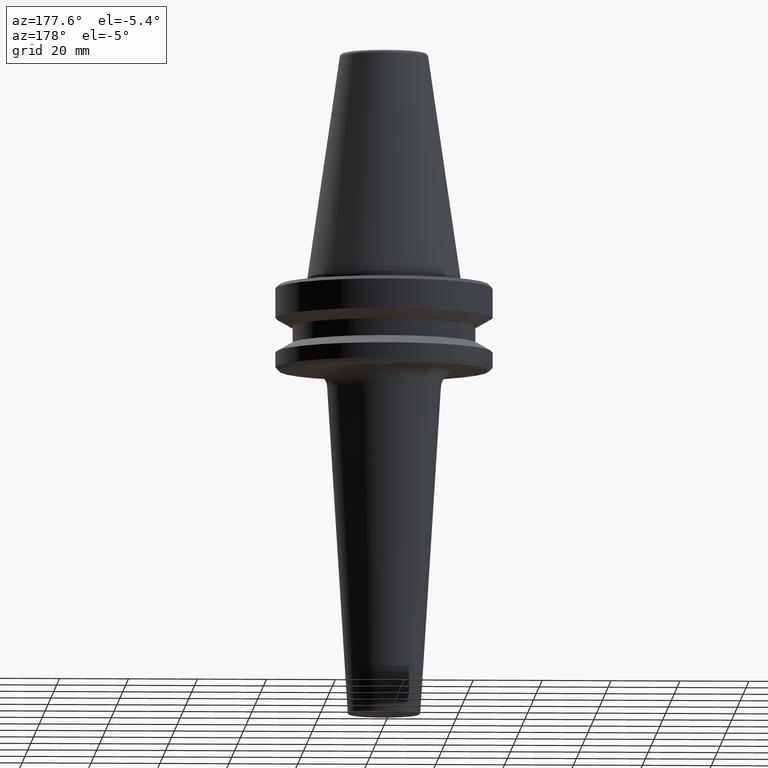
[diagram: clean part render]
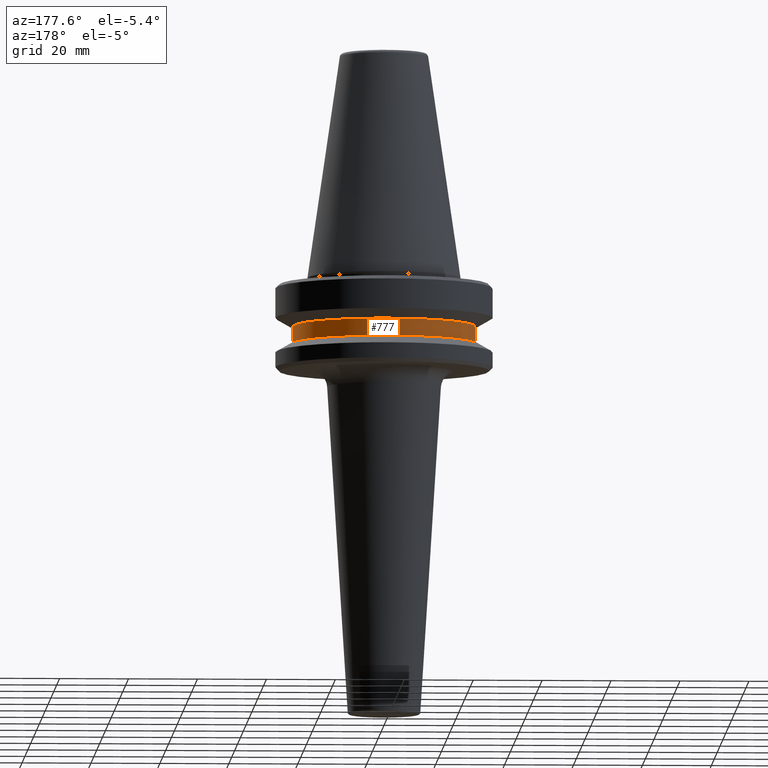
[diagram: same view with one face highlighted and labeled with its STEP entity id]
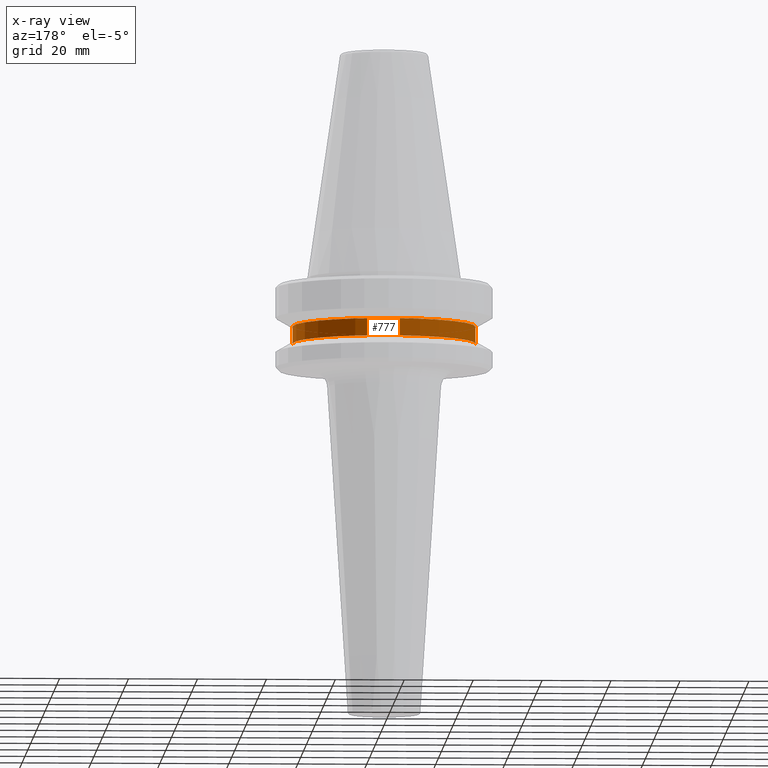
[diagram: x-ray of the same camera — body ghosted, the highlighted face saturated]
A machine part, auxiliary view. The second image highlights one B-rep face of the part: STEP entity #777.
The next image is the same camera in x-ray: the body ghosted, the highlighted face saturated — about 0% of this face is hidden behind the body in this view.
In plain terms, the highlighted cylindrical surface (partial cylindrical patch) has radius 26.5 mm, axis along (-0, -0, 1).
Its self-contained STEP definition (entity closure, byte-faithful):
#27 = EDGE_CURVE ( 'NONE', #128, #749, #46, .T. ) ;
#46 = CIRCLE ( 'NONE', #291, 26.50000000000019200 ) ;
#77 = ORIENTED_EDGE ( 'NONE', *, *, #537, .F. ) ;
#128 = VERTEX_POINT ( 'NONE', #1022 ) ;
#142 = CARTESIAN_POINT ( 'NONE',  ( 0.0000000000000000000, 0.0000000000000000000, -84.50000000000068200 ) ) ;
#148 = DIRECTION ( 'NONE',  ( -0.0000000000000000000, -0.0000000000000000000, 1.000000000000000000 ) ) ;
#172 = DIRECTION ( 'NONE',  ( -0.0000000000000000000, -0.0000000000000000000, 1.000000000000000000 ) ) ;
#222 = AXIS2_PLACEMENT_3D ( 'NONE', #954, #148, #555 ) ;
#252 = CIRCLE ( 'NONE', #222, 26.50000000000019200 ) ;
#272 = DIRECTION ( 'NONE',  ( 1.000000000000000000, 0.0000000000000000000, 0.0000000000000000000 ) ) ;
#286 = VERTEX_POINT ( 'NONE', #483 ) ;
#291 = AXIS2_PLACEMENT_3D ( 'NONE', #142, #172, #272 ) ;
#296 = EDGE_CURVE ( 'NONE', #749, #641, #532, .T. ) ;
#312 = CARTESIAN_POINT ( 'NONE',  ( 26.50000000000019200, 0.0000000000000000000, 6.357346922996331500 ) ) ;
#329 = VECTOR ( 'NONE', #423, 1000.000000000000000 ) ;
#342 = CARTESIAN_POINT ( 'NONE',  ( -26.50000000000019200, 3.245314017740509400E-015, 6.357346922996331500 ) ) ;
#362 = DIRECTION ( 'NONE',  ( -0.0000000000000000000, -0.0000000000000000000, 1.000000000000000000 ) ) ;
#423 = DIRECTION ( 'NONE',  ( -0.0000000000000000000, -0.0000000000000000000, 1.000000000000000000 ) ) ;
#441 = VECTOR ( 'NONE', #895, 1000.000000000000000 ) ;
#483 = CARTESIAN_POINT ( 'NONE',  ( 26.50000000000019200, 0.0000000000000000000, -79.50000000000012800 ) ) ;
#503 = CYLINDRICAL_SURFACE ( 'NONE', #669, 26.50000000000019200 ) ;
#532 = LINE ( 'NONE', #342, #329 ) ;
#537 = EDGE_CURVE ( 'NONE', #128, #286, #637, .T. ) ;
#555 = DIRECTION ( 'NONE',  ( 1.000000000000000000, 0.0000000000000000000, 0.0000000000000000000 ) ) ;
#590 = CARTESIAN_POINT ( 'NONE',  ( 0.0000000000000000000, 0.0000000000000000000, 6.357346922996331500 ) ) ;
#637 = LINE ( 'NONE', #312, #441 ) ;
#641 = VERTEX_POINT ( 'NONE', #901 ) ;
#662 = CARTESIAN_POINT ( 'NONE',  ( -26.50000000000019200, 3.245314017740509400E-015, -84.50000000000068200 ) ) ;
#669 = AXIS2_PLACEMENT_3D ( 'NONE', #590, #362, #742 ) ;
#736 = ORIENTED_EDGE ( 'NONE', *, *, #296, .T. ) ;
#742 = DIRECTION ( 'NONE',  ( 1.000000000000000000, 0.0000000000000000000, 0.0000000000000000000 ) ) ;
#745 = FACE_OUTER_BOUND ( 'NONE', #811, .T. ) ;
#749 = VERTEX_POINT ( 'NONE', #662 ) ;
#754 = ORIENTED_EDGE ( 'NONE', *, *, #27, .T. ) ;
#762 = EDGE_CURVE ( 'NONE', #286, #641, #252, .T. ) ;
#777 = ADVANCED_FACE ( 'NONE', ( #745 ), #503, .T. ) ;
#811 = EDGE_LOOP ( 'NONE', ( #754, #736, #818, #77 ) ) ;
#818 = ORIENTED_EDGE ( 'NONE', *, *, #762, .F. ) ;
#895 = DIRECTION ( 'NONE',  ( -0.0000000000000000000, -0.0000000000000000000, 1.000000000000000000 ) ) ;
#901 = CARTESIAN_POINT ( 'NONE',  ( -26.50000000000019200, 3.245314017740509400E-015, -79.50000000000012800 ) ) ;
#954 = CARTESIAN_POINT ( 'NONE',  ( 0.0000000000000000000, 0.0000000000000000000, -79.50000000000012800 ) ) ;
#1022 = CARTESIAN_POINT ( 'NONE',  ( 26.50000000000019200, 0.0000000000000000000, -84.50000000000068200 ) ) ;